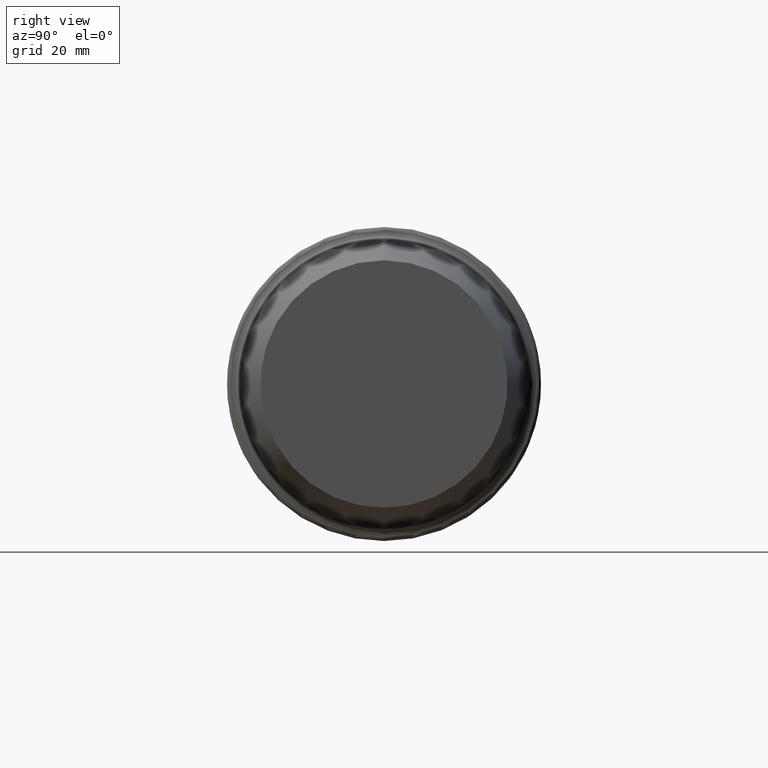
[diagram: clean part render]
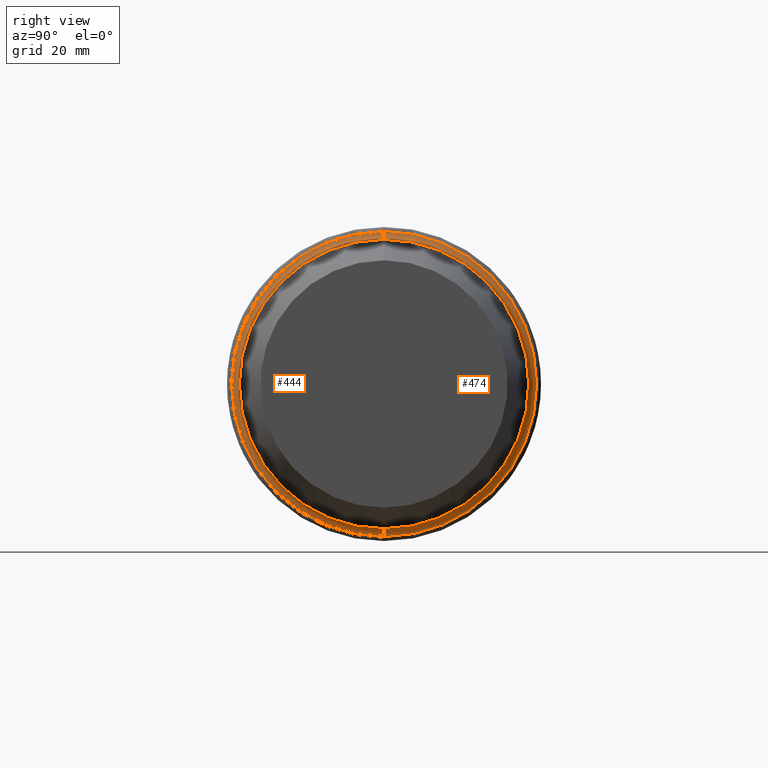
[diagram: same view with one multi-face feature highlighted, each face labeled with its STEP entity id]
A machine part, right view. The highlighted faces form ONE feature: a constant-radius fillet chain: 2 tangent blend faces with common blend radius 2 mm. The faces share edges in the B-rep.
Their STEP definitions:
[1] entity #444 (Torus):
#10 = EDGE_CURVE ( 'NONE', #397, #70, #104, .T. ) ;
#22 = AXIS2_PLACEMENT_3D ( 'NONE', #29, #225, #183 ) ;
#29 = CARTESIAN_POINT ( 'NONE',  ( 29.99999997209141611, 0.000000000000000000, 0.000000000000000000 ) ) ;
#60 = DIRECTION ( 'NONE',  ( 0.000000000000000000, 0.000000000000000000, 1.000000000000000000 ) ) ;
#65 = DIRECTION ( 'NONE',  ( -1.000000000000000000, 0.000000000000000000, 0.000000000000000000 ) ) ;
#67 = FACE_OUTER_BOUND ( 'NONE', #244, .T. ) ;
#70 = VERTEX_POINT ( 'NONE', #305 ) ;
#72 = EDGE_CURVE ( 'NONE', #91, #70, #87, .T. ) ;
#75 = AXIS2_PLACEMENT_3D ( 'NONE', #511, #133, #250 ) ;
#87 = CIRCLE ( 'NONE', #517, 36.85516611706941603 ) ;
#91 = VERTEX_POINT ( 'NONE', #181 ) ;
#104 = CIRCLE ( 'NONE', #75, 1.999999997960001608 ) ;
#108 = DIRECTION ( 'NONE',  ( 0.000000000000000000, 1.000000000000000000, 1.224646799147350002E-16 ) ) ;
#110 = ORIENTED_EDGE ( 'NONE', *, *, #448, .T. ) ;
#114 = ORIENTED_EDGE ( 'NONE', *, *, #10, .F. ) ;
#133 = DIRECTION ( 'NONE',  ( 0.000000000000000000, -1.000000000000000000, 0.000000000000000000 ) ) ;
#144 = CARTESIAN_POINT ( 'NONE',  ( 31.99999997005141594, 0.000000000000000000, 0.000000000000000000 ) ) ;
#148 = CARTESIAN_POINT ( 'NONE',  ( 31.84333994021121228, 0.000000000000000000, 0.000000000000000000 ) ) ;
#154 = ORIENTED_EDGE ( 'NONE', *, *, #428, .F. ) ;
#181 = CARTESIAN_POINT ( 'NONE',  ( 31.84333994021121228, 4.513456121731304833E-15, -36.85516611706941603 ) ) ;
#183 = DIRECTION ( 'NONE',  ( 0.000000000000000000, 0.000000000000000000, 1.000000000000000000 ) ) ;
#210 = CARTESIAN_POINT ( 'NONE',  ( 29.99999997209141611, 0.000000000000000000, 38.84902107923404202 ) ) ;
#225 = DIRECTION ( 'NONE',  ( -1.000000000000000000, 0.000000000000000000, 0.000000000000000000 ) ) ;
#232 = CIRCLE ( 'NONE', #22, 38.84902107503569368 ) ;
#240 = AXIS2_PLACEMENT_3D ( 'NONE', #144, #480, #521 ) ;
#244 = EDGE_LOOP ( 'NONE', ( #154, #110, #324, #114 ) ) ;
#250 = DIRECTION ( 'NONE',  ( 0.000000000000000000, 0.000000000000000000, -1.000000000000000000 ) ) ;
#286 = AXIS2_PLACEMENT_3D ( 'NONE', #439, #108, #487 ) ;
#304 = CARTESIAN_POINT ( 'NONE',  ( 29.99999997209141611, 4.757632931469198440E-15, -38.84902107923404202 ) ) ;
#305 = CARTESIAN_POINT ( 'NONE',  ( 31.84333994021121228, 0.000000000000000000, 36.85516611706941603 ) ) ;
#310 = TOROIDAL_SURFACE ( 'NONE', #240, 38.84902108343242588, 1.999999997959999831 ) ;
#324 = ORIENTED_EDGE ( 'NONE', *, *, #72, .T. ) ;
#330 = VERTEX_POINT ( 'NONE', #304 ) ;
#347 = CIRCLE ( 'NONE', #286, 1.999999997960001608 ) ;
#397 = VERTEX_POINT ( 'NONE', #210 ) ;
#428 = EDGE_CURVE ( 'NONE', #330, #397, #232, .T. ) ;
#439 = CARTESIAN_POINT ( 'NONE',  ( 31.99999997005141594, 4.757632931983355101E-15, -38.84902108343242588 ) ) ;
#444 = ADVANCED_FACE ( 'NONE', ( #67 ), #310, .F. ) ;
#448 = EDGE_CURVE ( 'NONE', #330, #91, #347, .T. ) ;
#480 = DIRECTION ( 'NONE',  ( -1.000000000000000000, 0.000000000000000000, 0.000000000000000000 ) ) ;
#487 = DIRECTION ( 'NONE',  ( 0.000000000000000000, -1.224646799147350495E-16, 1.000000000000000000 ) ) ;
#511 = CARTESIAN_POINT ( 'NONE',  ( 31.99999997005141594, 0.000000000000000000, 38.84902108343242588 ) ) ;
#517 = AXIS2_PLACEMENT_3D ( 'NONE', #148, #65, #60 ) ;
#521 = DIRECTION ( 'NONE',  ( 0.000000000000000000, 0.000000000000000000, 1.000000000000000000 ) ) ;
[2] entity #474 (Torus):
#10 = EDGE_CURVE ( 'NONE', #397, #70, #104, .T. ) ;
#34 = EDGE_LOOP ( 'NONE', ( #194, #449, #203, #527 ) ) ;
#61 = DIRECTION ( 'NONE',  ( -1.000000000000000000, 0.000000000000000000, 0.000000000000000000 ) ) ;
#70 = VERTEX_POINT ( 'NONE', #305 ) ;
#75 = AXIS2_PLACEMENT_3D ( 'NONE', #511, #133, #250 ) ;
#91 = VERTEX_POINT ( 'NONE', #181 ) ;
#104 = CIRCLE ( 'NONE', #75, 1.999999997960001608 ) ;
#108 = DIRECTION ( 'NONE',  ( 0.000000000000000000, 1.000000000000000000, 1.224646799147350002E-16 ) ) ;
#109 = DIRECTION ( 'NONE',  ( 0.000000000000000000, 0.000000000000000000, 1.000000000000000000 ) ) ;
#120 = AXIS2_PLACEMENT_3D ( 'NONE', #227, #61, #392 ) ;
#133 = DIRECTION ( 'NONE',  ( 0.000000000000000000, -1.000000000000000000, 0.000000000000000000 ) ) ;
#152 = CARTESIAN_POINT ( 'NONE',  ( 31.99999997005141594, 0.000000000000000000, 0.000000000000000000 ) ) ;
#166 = AXIS2_PLACEMENT_3D ( 'NONE', #437, #477, #351 ) ;
#181 = CARTESIAN_POINT ( 'NONE',  ( 31.84333994021121228, 4.513456121731304833E-15, -36.85516611706941603 ) ) ;
#194 = ORIENTED_EDGE ( 'NONE', *, *, #448, .F. ) ;
#203 = ORIENTED_EDGE ( 'NONE', *, *, #10, .T. ) ;
#210 = CARTESIAN_POINT ( 'NONE',  ( 29.99999997209141611, 0.000000000000000000, 38.84902107923404202 ) ) ;
#227 = CARTESIAN_POINT ( 'NONE',  ( 29.99999997209141611, 0.000000000000000000, 0.000000000000000000 ) ) ;
#231 = DIRECTION ( 'NONE',  ( -1.000000000000000000, 0.000000000000000000, 0.000000000000000000 ) ) ;
#250 = DIRECTION ( 'NONE',  ( 0.000000000000000000, 0.000000000000000000, -1.000000000000000000 ) ) ;
#286 = AXIS2_PLACEMENT_3D ( 'NONE', #439, #108, #487 ) ;
#295 = CIRCLE ( 'NONE', #166, 36.85516611706941603 ) ;
#304 = CARTESIAN_POINT ( 'NONE',  ( 29.99999997209141611, 4.757632931469198440E-15, -38.84902107923404202 ) ) ;
#305 = CARTESIAN_POINT ( 'NONE',  ( 31.84333994021121228, 0.000000000000000000, 36.85516611706941603 ) ) ;
#319 = CIRCLE ( 'NONE', #120, 38.84902107503569368 ) ;
#330 = VERTEX_POINT ( 'NONE', #304 ) ;
#337 = AXIS2_PLACEMENT_3D ( 'NONE', #152, #231, #109 ) ;
#347 = CIRCLE ( 'NONE', #286, 1.999999997960001608 ) ;
#351 = DIRECTION ( 'NONE',  ( 0.000000000000000000, 0.000000000000000000, 1.000000000000000000 ) ) ;
#392 = DIRECTION ( 'NONE',  ( 0.000000000000000000, 0.000000000000000000, 1.000000000000000000 ) ) ;
#396 = TOROIDAL_SURFACE ( 'NONE', #337, 38.84902108343242588, 1.999999997959999831 ) ;
#397 = VERTEX_POINT ( 'NONE', #210 ) ;
#437 = CARTESIAN_POINT ( 'NONE',  ( 31.84333994021121228, 0.000000000000000000, 0.000000000000000000 ) ) ;
#439 = CARTESIAN_POINT ( 'NONE',  ( 31.99999997005141594, 4.757632931983355101E-15, -38.84902108343242588 ) ) ;
#448 = EDGE_CURVE ( 'NONE', #330, #91, #347, .T. ) ;
#449 = ORIENTED_EDGE ( 'NONE', *, *, #469, .F. ) ;
#469 = EDGE_CURVE ( 'NONE', #397, #330, #319, .T. ) ;
#474 = ADVANCED_FACE ( 'NONE', ( #519 ), #396, .F. ) ;
#477 = DIRECTION ( 'NONE',  ( -1.000000000000000000, 0.000000000000000000, 0.000000000000000000 ) ) ;
#487 = DIRECTION ( 'NONE',  ( 0.000000000000000000, -1.224646799147350495E-16, 1.000000000000000000 ) ) ;
#511 = CARTESIAN_POINT ( 'NONE',  ( 31.99999997005141594, 0.000000000000000000, 38.84902108343242588 ) ) ;
#519 = FACE_OUTER_BOUND ( 'NONE', #34, .T. ) ;
#524 = EDGE_CURVE ( 'NONE', #70, #91, #295, .T. ) ;
#527 = ORIENTED_EDGE ( 'NONE', *, *, #524, .T. ) ;